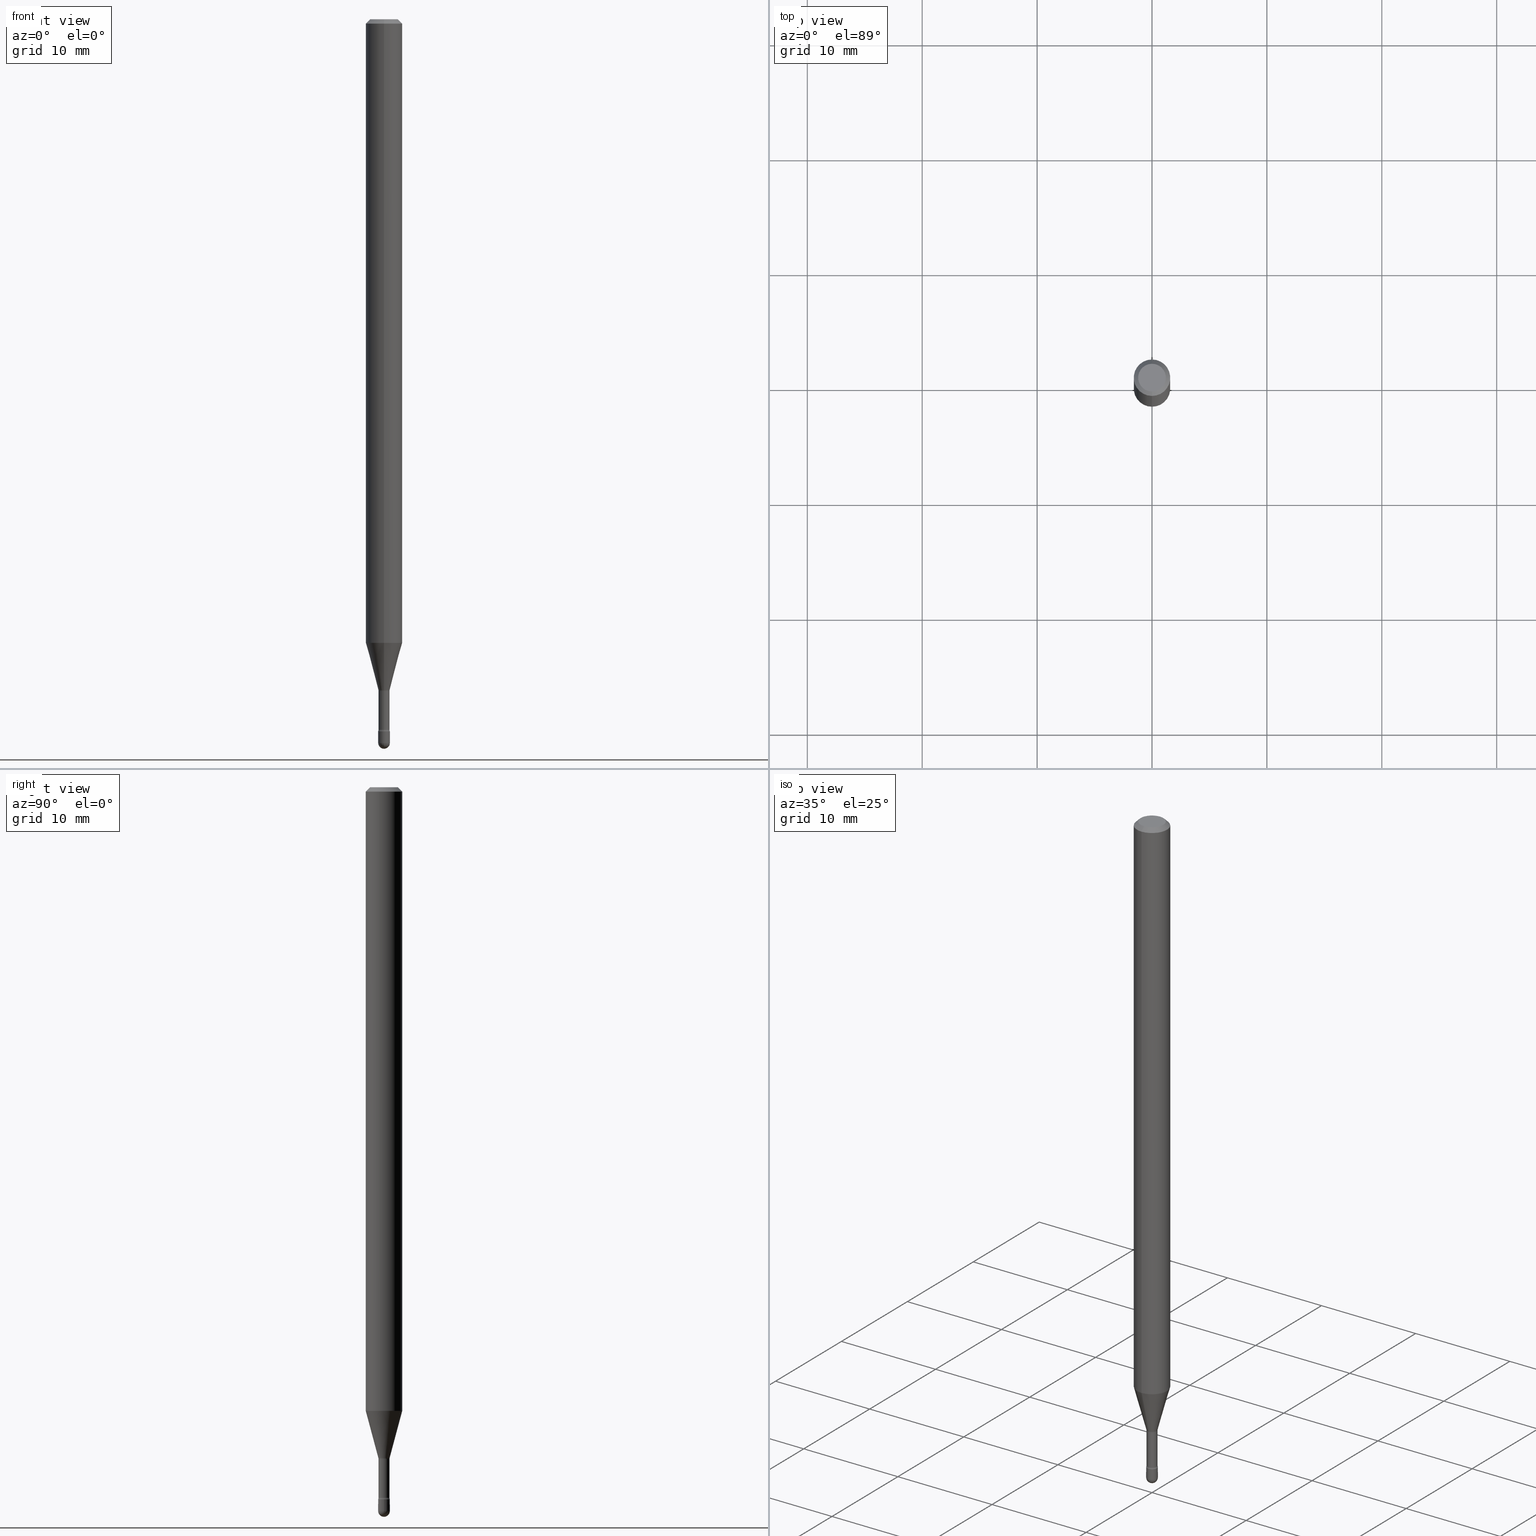
[diagram: canonical four-view strip — front | top / right | iso, engineering-drawing reading convention]
A machine part, canonical four-view strip (front | top / right | iso — engineering-drawing reading convention). The complete STEP part file that produces these views, byte-faithful:
ISO-10303-21;
HEADER;
FILE_DESCRIPTION (( 'STEP AP203' ),
    '1' );
FILE_NAME ('03839.STEP',
    '2024-04-09T20:41:39',
    ( '' ),
    ( '' ),
    'SwSTEP 2.0',
    'SolidWorks 2023',
    '' );
FILE_SCHEMA (( 'CONFIG_CONTROL_DESIGN' ));
ENDSEC;

DATA;
#1 = DIRECTION ( 'NONE',  ( 2.445422373250545997E-29, -3.491547833448277962E-15, -1.000000000000000000 ) ) ;
#2 = DIRECTION ( 'NONE',  ( 7.105427357601001859E-15, 1.000000000000000000, 0.000000000000000000 ) ) ;
#3 = CARTESIAN_POINT ( 'NONE',  ( 5.619806819669917985E-29, -8.023899895679087068E-15, -2.298092501787273090 ) ) ;
#4 = ADVANCED_FACE ( 'NONE', ( #111 ), #324, .F. ) ;
#5 = ADVANCED_FACE ( 'NONE', ( #496 ), #296, .F. ) ;
#6 = LINE ( 'NONE', #329, #403 ) ;
#7 = CIRCLE ( 'NONE', #343, 0.01931111260566397564 ) ;
#8 = DIRECTION ( 'NONE',  ( -2.445422373250545997E-29, 3.491547833448277962E-15, 1.000000000000000000 ) ) ;
#9 = ORIENTED_EDGE ( 'NONE', *, *, #531, .T. ) ;
#10 = CARTESIAN_POINT ( 'NONE',  ( 6.064762639339139522E-29, -8.658873720331001644E-15, -2.480000000000000426 ) ) ;
#11 = DIRECTION ( 'NONE',  ( -6.982962677686265922E-15, -1.000000000000000000, 0.000000000000000000 ) ) ;
#12 = VERTEX_POINT ( 'NONE', #453 ) ;
#13 = DIRECTION ( 'NONE',  ( 1.000000000000000000, -6.982962677686235945E-15, 0.000000000000000000 ) ) ;
#14 = CARTESIAN_POINT ( 'NONE',  ( 5.619806819669917985E-29, -8.023899895679087068E-15, -2.298092501787273090 ) ) ;
#15 = VERTEX_POINT ( 'NONE', #519 ) ;
#16 = CIRCLE ( 'NONE', #195, 0.04749999999999999362 ) ;
#17 = APPLICATION_PROTOCOL_DEFINITION ( 'international standard', 'config_control_design', 1994, #218 ) ;
#18 = AXIS2_PLACEMENT_3D ( 'NONE', #452, #54, #372 ) ;
#19 = CARTESIAN_POINT ( 'NONE',  ( 6.064762639339139522E-29, -8.658873720331001644E-15, -2.480000000000000426 ) ) ;
#20 = ORIENTED_EDGE ( 'NONE', *, *, #22, .T. ) ;
#21 = FACE_OUTER_BOUND ( 'NONE', #419, .T. ) ;
#22 = EDGE_CURVE ( 'NONE', #124, #275, #118, .T. ) ;
#23 = ADVANCED_FACE ( 'NONE', ( #562 ), #473, .F. ) ;
#24 = CYLINDRICAL_SURFACE ( 'NONE', #35, 0.01880000000000000421 ) ;
#25 = ORIENTED_EDGE ( 'NONE', *, *, #247, .F. ) ;
#26 = CIRCLE ( 'NONE', #106, 0.06250000000000000000 ) ;
#27 = COORDINATED_UNIVERSAL_TIME_OFFSET ( 5, 0, .BEHIND. ) ;
#28 = AXIS2_PLACEMENT_3D ( 'NONE', #92, #441, #364 ) ;
#29 = CARTESIAN_POINT ( 'NONE',  ( 4.440892098501151740E-16, 0.06249999999999995143, -0.01500000000000030129 ) ) ;
#30 = LOCAL_TIME ( 16, 41, 39.00000000000000000, #304 ) ;
#31 = ORIENTED_EDGE ( 'NONE', *, *, #360, .F. ) ;
#32 = CARTESIAN_POINT ( 'NONE',  ( 1.378452907375190485E-16, 0.01879999999999150406, -2.434121224617320500 ) ) ;
#33 = EDGE_CURVE ( 'NONE', #94, #248, #26, .T. ) ;
#34 = FACE_OUTER_BOUND ( 'NONE', #318, .T. ) ;
#35 = AXIS2_PLACEMENT_3D ( 'NONE', #207, #130, #305 ) ;
#36 = ORIENTED_EDGE ( 'NONE', *, *, #88, .F. ) ;
#37 = MANIFOLD_SOLID_BREP ( 'Body-Move/Copy2[1]', #536 ) ;
#38 = DIRECTION ( 'NONE',  ( -2.445422373250545997E-29, 3.491547833448277962E-15, 1.000000000000000000 ) ) ;
#39 = VECTOR ( 'NONE', #388, 39.37007874015748143 ) ;
#40 = ORIENTED_EDGE ( 'NONE', *, *, #88, .T. ) ;
#41 = MANIFOLD_SOLID_BREP ( 'Body-Move/Copy2[2]', #543 ) ;
#42 = DIRECTION ( 'NONE',  ( -2.445422373250545997E-29, 3.491547833448277962E-15, 1.000000000000000000 ) ) ;
#43 = ORIENTED_EDGE ( 'NONE', *, *, #108, .T. ) ;
#44 = ORIENTED_EDGE ( 'NONE', *, *, #349, .T. ) ;
#45 = DIRECTION ( 'NONE',  ( 1.000000000000000000, -6.982962677686265922E-15, 4.876176775795935793E-29 ) ) ;
#46 = CC_DESIGN_PERSON_AND_ORGANIZATION_ASSIGNMENT ( #250, #206, ( #274 ) ) ;
#47 = DIRECTION ( 'NONE',  ( 6.982962677686265133E-15, 1.000000000000000000, 0.000000000000000000 ) ) ;
#48 = CARTESIAN_POINT ( 'NONE',  ( 5.952454501883212804E-29, -8.498850688163074584E-15, -2.434121224617320500 ) ) ;
#49 = VECTOR ( 'NONE', #186, 39.37007874015748143 ) ;
#50 = ORIENTED_EDGE ( 'NONE', *, *, #538, .F. ) ;
#51 = ORIENTED_EDGE ( 'NONE', *, *, #210, .F. ) ;
#52 = FACE_OUTER_BOUND ( 'NONE', #341, .T. ) ;
#53 = ORIENTED_EDGE ( 'NONE', *, *, #196, .F. ) ;
#54 = DIRECTION ( 'NONE',  ( -2.445422373250545997E-29, 3.491547833448277962E-15, 1.000000000000000000 ) ) ;
#55 = DESIGN_CONTEXT ( 'detailed design', #218, 'design' ) ;
#56 = AXIS2_PLACEMENT_3D ( 'NONE', #232, #1, #429 ) ;
#57 = SECURITY_CLASSIFICATION ( '', '', #294 ) ;
#58 = DIRECTION ( 'NONE',  ( -6.982962677686265922E-15, -1.000000000000000000, 3.491547833448278751E-15 ) ) ;
#59 = ORIENTED_EDGE ( 'NONE', *, *, #258, .F. ) ;
#60 = CARTESIAN_POINT ( 'NONE',  ( 1.372137078140545619E-16, 0.01931111260565595081, -2.298092501787273090 ) ) ;
#61 = FACE_OUTER_BOUND ( 'NONE', #190, .T. ) ;
#62 = EDGE_CURVE ( 'NONE', #110, #87, #424, .T. ) ;
#63 = EDGE_LOOP ( 'NONE', ( #414, #194, #520, #460 ) ) ;
#64 = COORDINATED_UNIVERSAL_TIME_OFFSET ( 5, 0, .BEHIND. ) ;
#65 = DIRECTION ( 'NONE',  ( -2.445422373250545997E-29, 3.491547833448277962E-15, 1.000000000000000000 ) ) ;
#66 = ORIENTED_EDGE ( 'NONE', *, *, #484, .F. ) ;
#67 = APPROVAL_STATUS ( 'not_yet_approved' ) ;
#68 = CARTESIAN_POINT ( 'NONE',  ( -4.364351673553916201E-16, -0.06250000000000000000, 6.962951384817635098E-16 ) ) ;
#69 = AXIS2_PLACEMENT_3D ( 'NONE', #485, #90, #47 ) ;
#70 = ADVANCED_FACE ( 'NONE', ( #537 ), #440, .T. ) ;
#71 = CALENDAR_DATE ( 2024, 9, 4 ) ;
#72 = DIRECTION ( 'NONE',  ( -2.445468806185136877E-29, 3.491481338843145188E-15, 1.000000000000000000 ) ) ;
#73 = PERSON_AND_ORGANIZATION ( #557, #131 ) ;
#74 = DIRECTION ( 'NONE',  ( -1.000000000000000000, 6.982962677686265133E-15, -4.883557194083112340E-29 ) ) ;
#75 = CALENDAR_DATE ( 2024, 9, 4 ) ;
#76 = ADVANCED_FACE ( 'NONE', ( #61 ), #377, .T. ) ;
#77 = AXIS2_PLACEMENT_3D ( 'NONE', #109, #242, #277 ) ;
#78 = DIRECTION ( 'NONE',  ( 1.000000000000000000, -6.982962677686265922E-15, 4.876176775795935793E-29 ) ) ;
#79 = AXIS2_PLACEMENT_3D ( 'NONE', #535, #231, #402 ) ;
#80 = DIRECTION ( 'NONE',  ( -2.438088387897960049E-29, 3.491481338843145188E-15, 1.000000000000000000 ) ) ;
#81 = EDGE_LOOP ( 'NONE', ( #481, #444, #153, #51 ) ) ;
#82 = CARTESIAN_POINT ( 'NONE',  ( 6.064762639339139522E-29, -8.658873720331001644E-15, -2.480000000000000426 ) ) ;
#83 = ORIENTED_EDGE ( 'NONE', *, *, #386, .T. ) ;
#84 = FACE_OUTER_BOUND ( 'NONE', #314, .T. ) ;
#85 = AXIS2_PLACEMENT_3D ( 'NONE', #340, #74, #300 ) ;
#86 = CC_DESIGN_APPROVAL ( #292, ( #274 ) ) ;
#87 = VERTEX_POINT ( 'NONE', #321 ) ;
#88 = EDGE_CURVE ( 'NONE', #511, #489, #122, .T. ) ;
#89 = LINE ( 'NONE', #396, #284 ) ;
#90 = DIRECTION ( 'NONE',  ( -1.000000000000000000, 6.982962677686265133E-15, -4.883557194083112340E-29 ) ) ;
#91 = ORIENTED_EDGE ( 'NONE', *, *, #137, .F. ) ;
#92 = CARTESIAN_POINT ( 'NONE',  ( -2.360241385057395071E-16, -0.03380000000000803889, -2.301974787463811012 ) ) ;
#93 = CARTESIAN_POINT ( 'NONE',  ( 2.401634446869701444E-16, 0.03379999999999196841, -2.301974787463811012 ) ) ;
#94 = VERTEX_POINT ( 'NONE', #156 ) ;
#95 = CARTESIAN_POINT ( 'NONE',  ( 3.668133559875839332E-31, -5.237321750172445712E-17, -0.01500000000000008271 ) ) ;
#96 = VERTEX_POINT ( 'NONE', #99 ) ;
#97 = CIRCLE ( 'NONE', #176, 0.01880000000000000421 ) ;
#98 = AXIS2_PLACEMENT_3D ( 'NONE', #346, #126, #251 ) ;
#99 = CARTESIAN_POINT ( 'NONE',  ( -1.312796983404455212E-16, -0.01880000000000803945, -2.301974787463811012 ) ) ;
#100 = AXIS2_PLACEMENT_3D ( 'NONE', #235, #413, #184 ) ;
#101 = ADVANCED_BREP_SHAPE_REPRESENTATION ( '03839', ( #37, #41, #225 ), #334 ) ;
#102 = DIRECTION ( 'NONE',  ( -2.445468806185136597E-29, 3.491481338843145583E-15, 1.000000000000000000 ) ) ;
#103 = ADVANCED_FACE ( 'NONE', ( #480 ), #217, .T. ) ;
#104 =( NAMED_UNIT ( * ) PLANE_ANGLE_UNIT ( ) SI_UNIT ( $, .RADIAN. ) );
#105 = ORIENTED_EDGE ( 'NONE', *, *, #180, .F. ) ;
#106 = AXIS2_PLACEMENT_3D ( 'NONE', #288, #447, #113 ) ;
#107 = VECTOR ( 'NONE', #448, 39.37007874015748854 ) ;
#108 = EDGE_CURVE ( 'NONE', #514, #291, #320, .T. ) ;
#109 = CARTESIAN_POINT ( 'NONE',  ( -2.360241385057363517E-16, -0.03380000000000851074, -2.434121224617320500 ) ) ;
#110 = VERTEX_POINT ( 'NONE', #526 ) ;
#111 = FACE_OUTER_BOUND ( 'NONE', #397, .T. ) ;
#112 = DATE_AND_TIME ( #390, #363 ) ;
#113 = DIRECTION ( 'NONE',  ( -6.982962677686265922E-15, -1.000000000000000000, 4.370956789862821150E-15 ) ) ;
#114 = ORIENTED_EDGE ( 'NONE', *, *, #469, .T. ) ;
#115 = PERSON_AND_ORGANIZATION_ROLE ( 'design_supplier' ) ;
#116 = ADVANCED_FACE ( 'NONE', ( #200 ), #202, .T. ) ;
#117 = CARTESIAN_POINT ( 'NONE',  ( -0.02000000000000000042, 1.421085471520200401E-16, -9.837870180509812545E-31 ) ) ;
#118 = CIRCLE ( 'NONE', #212, 0.01500000000000001159 ) ;
#119 = AXIS2_PLACEMENT_3D ( 'NONE', #356, #226, #308 ) ;
#120 = DATE_TIME_ROLE ( 'creation_date' ) ;
#121 = DIRECTION ( 'NONE',  ( -2.445468806185136597E-29, 3.491481338843145583E-15, 1.000000000000000000 ) ) ;
#122 = CIRCLE ( 'NONE', #79, 0.01999999999999989286 ) ;
#123 = PERSON_AND_ORGANIZATION ( #557, #131 ) ;
#124 = VERTEX_POINT ( 'NONE', #32 ) ;
#125 = PERSON_AND_ORGANIZATION ( #557, #131 ) ;
#126 = DIRECTION ( 'NONE',  ( -2.445468806185136597E-29, 3.491481338843145583E-15, 1.000000000000000000 ) ) ;
#127 = AXIS2_PLACEMENT_3D ( 'NONE', #158, #121, #78 ) ;
#128 = ADVANCED_FACE ( 'NONE', ( #425 ), #24, .T. ) ;
#129 = AXIS2_PLACEMENT_3D ( 'NONE', #230, #269, #273 ) ;
#130 = DIRECTION ( 'NONE',  ( -2.445422373250545997E-29, 3.491547833448277962E-15, 1.000000000000000000 ) ) ;
#131 = ORGANIZATION ( 'UNSPECIFIED', 'UNSPECIFIED', '' ) ;
#132 = AXIS2_PLACEMENT_3D ( 'NONE', #361, #246, #499 ) ;
#133 = DIRECTION ( 'NONE',  ( -2.445422373250545997E-29, 3.491547833448277962E-15, 1.000000000000000000 ) ) ;
#134 = ORIENTED_EDGE ( 'NONE', *, *, #281, .F. ) ;
#135 = CARTESIAN_POINT ( 'NONE',  ( -1.348487785898921104E-16, -0.01931111260567200047, -2.298092501787273090 ) ) ;
#136 = VERTEX_POINT ( 'NONE', #29 ) ;
#137 = EDGE_CURVE ( 'NONE', #203, #96, #216, .T. ) ;
#138 = ADVANCED_FACE ( 'NONE', ( #550 ), #431, .T. ) ;
#139 = CARTESIAN_POINT ( 'NONE',  ( 0.02000000000000000042, -1.396592535537253145E-16, 9.752353551591871936E-31 ) ) ;
#140 = AXIS2_PLACEMENT_3D ( 'NONE', #3, #280, #237 ) ;
#141 = CARTESIAN_POINT ( 'NONE',  ( 5.952567525274821981E-29, -8.498688832233398804E-15, -2.434121224617320500 ) ) ;
#142 = ORIENTED_EDGE ( 'NONE', *, *, #442, .F. ) ;
#143 = CARTESIAN_POINT ( 'NONE',  ( 5.952567525274821981E-29, -8.498688832233398804E-15, -2.434121224617320500 ) ) ;
#144 = CARTESIAN_POINT ( 'NONE',  ( 5.629407535367409882E-29, -8.037302012917312840E-15, -2.301974787463811012 ) ) ;
#145 = ORIENTED_EDGE ( 'NONE', *, *, #137, .T. ) ;
#146 = ADVANCED_FACE ( 'NONE', ( #21 ), #540, .T. ) ;
#147 = CARTESIAN_POINT ( 'NONE',  ( 6.064762639339139522E-29, -8.658873720331001644E-15, -2.480000000000000426 ) ) ;
#148 = DIRECTION ( 'NONE',  ( -6.982962677686265922E-15, -1.000000000000000000, 3.491547833448278357E-15 ) ) ;
#149 = ORIENTED_EDGE ( 'NONE', *, *, #546, .T. ) ;
#150 = CIRCLE ( 'NONE', #426, 0.02000000000000000042 ) ;
#151 = DIRECTION ( 'NONE',  ( 1.000000000000000000, -6.982962677686235945E-15, 0.000000000000000000 ) ) ;
#152 = DIRECTION ( 'NONE',  ( -2.445422373250545997E-29, 3.491547833448277962E-15, 1.000000000000000000 ) ) ;
#153 = ORIENTED_EDGE ( 'NONE', *, *, #561, .F. ) ;
#154 = DIRECTION ( 'NONE',  ( -2.445468806185136597E-29, 3.491481338843145583E-15, 1.000000000000000000 ) ) ;
#155 = PRODUCT_DEFINITION_SHAPE ( 'NONE', 'NONE',  #274 ) ;
#156 = CARTESIAN_POINT ( 'NONE',  ( -4.364351673553395553E-16, -0.06250000000000748013, -2.136909379709240220 ) ) ;
#157 = CIRCLE ( 'NONE', #306, 0.01880000000000000421 ) ;
#158 = CARTESIAN_POINT ( 'NONE',  ( 0.000000000000000000, 0.000000000000000000, 0.000000000000000000 ) ) ;
#159 = ORIENTED_EDGE ( 'NONE', *, *, #435, .T. ) ;
#160 = PERSON_AND_ORGANIZATION ( #557, #131 ) ;
#161 = CARTESIAN_POINT ( 'NONE',  ( -1.312796983405018262E-16, -0.01880000000000000421, 5.437144981600737344E-16 ) ) ;
#162 = ORIENTED_EDGE ( 'NONE', *, *, #368, .F. ) ;
#163 = VECTOR ( 'NONE', #547, 39.37007874015748143 ) ;
#164 = COORDINATED_UNIVERSAL_TIME_OFFSET ( 5, 0, .BEHIND. ) ;
#165 = DIRECTION ( 'NONE',  ( -4.851104656540964275E-15, -0.7071067811865500152, -0.7071067811865450192 ) ) ;
#166 = ORIENTED_EDGE ( 'NONE', *, *, #513, .F. ) ;
#167 = VECTOR ( 'NONE', #517, 39.37007874015748143 ) ;
#168 = DATE_AND_TIME ( #71, #30 ) ;
#169 = CARTESIAN_POINT ( 'NONE',  ( -1.312796983404422918E-16, -0.01880000000000850088, -2.434121224617320500 ) ) ;
#170 = APPROVAL_DATE_TIME ( #112, #292 ) ;
#171 = DIRECTION ( 'NONE',  ( -2.445422373250545997E-29, 3.491547833448277962E-15, 1.000000000000000000 ) ) ;
#172 = ORIENTED_EDGE ( 'NONE', *, *, #234, .T. ) ;
#173 = CC_DESIGN_PERSON_AND_ORGANIZATION_ASSIGNMENT ( #125, #501, ( #476 ) ) ;
#174 = DIRECTION ( 'NONE',  ( -2.445422373250546277E-29, 3.491547833448277568E-15, 1.000000000000000000 ) ) ;
#175 = VERTEX_POINT ( 'NONE', #391 ) ;
#176 = AXIS2_PLACEMENT_3D ( 'NONE', #404, #133, #310 ) ;
#177 = CARTESIAN_POINT ( 'NONE',  ( 5.619806819669917985E-29, -8.023899895679087068E-15, -2.298092501787273090 ) ) ;
#178 = ORIENTED_EDGE ( 'NONE', *, *, #435, .F. ) ;
#179 = DIRECTION ( 'NONE',  ( -2.445422373250545997E-29, 3.491547833448277962E-15, 1.000000000000000000 ) ) ;
#180 = EDGE_CURVE ( 'NONE', #175, #110, #338, .T. ) ;
#181 = EDGE_LOOP ( 'NONE', ( #172, #249 ) ) ;
#182 = VECTOR ( 'NONE', #72, 39.37007874015748143 ) ;
#183 = PLANE ( 'NONE',  #418 ) ;
#184 = DIRECTION ( 'NONE',  ( 1.000000000000000000, -6.982962677686284065E-15, 0.000000000000000000 ) ) ;
#185 = ORIENTED_EDGE ( 'NONE', *, *, #405, .F. ) ;
#186 = DIRECTION ( 'NONE',  ( -2.445468806185136877E-29, 3.491481338843145188E-15, 1.000000000000000000 ) ) ;
#187 = AXIS2_PLACEMENT_3D ( 'NONE', #303, #65, #463 ) ;
#188 = DIRECTION ( 'NONE',  ( 1.000000000000000000, -7.105427357601001070E-15, 4.926316322866135778E-29 ) ) ;
#189 = CARTESIAN_POINT ( 'NONE',  ( -1.421085471519589527E-16, -0.02000000000000860464, -2.480000000000000426 ) ) ;
#190 = EDGE_LOOP ( 'NONE', ( #162, #40, #66, #59 ) ) ;
#191 = EDGE_LOOP ( 'NONE', ( #389, #351, #497, #297 ) ) ;
#192 = ADVANCED_FACE ( 'NONE', ( #422 ), #262, .T. ) ;
#193 =( LENGTH_UNIT ( ) NAMED_UNIT ( * ) SI_UNIT ( $, .METRE. ) );
#194 = ORIENTED_EDGE ( 'NONE', *, *, #335, .F. ) ;
#195 = AXIS2_PLACEMENT_3D ( 'NONE', #263, #179, #354 ) ;
#196 = EDGE_CURVE ( 'NONE', #434, #373, #209, .T. ) ;
#197 = CC_DESIGN_PERSON_AND_ORGANIZATION_ASSIGNMENT ( #73, #115, ( #476 ) ) ;
#198 = DIRECTION ( 'NONE',  ( 0.000000000000000000, 0.000000000000000000, 1.000000000000000000 ) ) ;
#199 = ORIENTED_EDGE ( 'NONE', *, *, #222, .F. ) ;
#200 = FACE_OUTER_BOUND ( 'NONE', #493, .T. ) ;
#201 = DIRECTION ( 'NONE',  ( -6.982962677686265922E-15, -1.000000000000000000, 3.483106191921935554E-15 ) ) ;
#202 = CYLINDRICAL_SURFACE ( 'NONE', #127, 0.02000000000000000042 ) ;
#203 = VERTEX_POINT ( 'NONE', #169 ) ;
#204 = ADVANCED_FACE ( 'NONE', ( #459 ), #387, .T. ) ;
#205 = AXIS2_PLACEMENT_3D ( 'NONE', #509, #171, #508 ) ;
#206 = PERSON_AND_ORGANIZATION_ROLE ( 'creator' ) ;
#207 = CARTESIAN_POINT ( 'NONE',  ( -1.169113584055446105E-44, 1.669184350826100908E-30, 4.780733988912460139E-16 ) ) ;
#208 = ORIENTED_EDGE ( 'NONE', *, *, #258, .T. ) ;
#209 = LINE ( 'NONE', #295, #223 ) ;
#210 = EDGE_CURVE ( 'NONE', #94, #373, #428, .T. ) ;
#211 = CARTESIAN_POINT ( 'NONE',  ( 4.440892098500625669E-16, 0.06250000000000000000, 2.598516593007287152E-16 ) ) ;
#212 = AXIS2_PLACEMENT_3D ( 'NONE', #332, #188, #412 ) ;
#213 = AXIS2_PLACEMENT_3D ( 'NONE', #10, #154, #13 ) ;
#214 = APPROVAL_DATE_TIME ( #457, #490 ) ;
#215 = DIRECTION ( 'NONE',  ( -2.445422373250545997E-29, 3.491547833448277962E-15, 1.000000000000000000 ) ) ;
#216 = LINE ( 'NONE', #161, #163 ) ;
#217 = CONICAL_SURFACE ( 'NONE', #311, 0.01931111260566397564, 0.2617993877991498519 ) ;
#218 = APPLICATION_CONTEXT ( 'configuration controlled 3d designs of mechanical parts and assemblies' ) ;
#219 = LINE ( 'NONE', #139, #49 ) ;
#220 = ORIENTED_EDGE ( 'NONE', *, *, #532, .F. ) ;
#221 = ADVANCED_FACE ( 'NONE', ( #461 ), #255, .F. ) ;
#222 = EDGE_CURVE ( 'NONE', #248, #136, #348, .T. ) ;
#223 = VECTOR ( 'NONE', #165, 39.37007874015748143 ) ;
#224 = DIMENSIONAL_EXPONENTS ( 1.000000000000000000, 0.000000000000000000, 0.000000000000000000, 0.000000000000000000, 0.000000000000000000, 0.000000000000000000, 0.000000000000000000 ) ;
#225 = AXIS2_PLACEMENT_3D ( 'NONE', #411, #198, #375 ) ;
#226 = DIRECTION ( 'NONE',  ( -2.445468806185136597E-29, 3.491481338843145583E-15, 1.000000000000000000 ) ) ;
#227 = ORIENTED_EDGE ( 'NONE', *, *, #386, .F. ) ;
#228 = DIRECTION ( 'NONE',  ( -6.982962677686265922E-15, -1.000000000000000000, 0.000000000000000000 ) ) ;
#229 = EDGE_LOOP ( 'NONE', ( #134, #43, #83, #142 ) ) ;
#230 = CARTESIAN_POINT ( 'NONE',  ( 5.225646006749922120E-29, -7.461121314999102077E-15, -2.136909379709240220 ) ) ;
#231 = DIRECTION ( 'NONE',  ( 1.000000000000000000, -6.982962677686265922E-15, 4.883557194083112340E-29 ) ) ;
#232 = CARTESIAN_POINT ( 'NONE',  ( 3.668133559875839332E-31, -5.237321750172445712E-17, -0.01500000000000008271 ) ) ;
#233 = AXIS2_PLACEMENT_3D ( 'NONE', #95, #152, #201 ) ;
#234 = EDGE_CURVE ( 'NONE', #293, #434, #395, .T. ) ;
#235 = CARTESIAN_POINT ( 'NONE',  ( 5.966943887091733341E-29, -8.519214466777275048E-15, -2.440000000000000391 ) ) ;
#236 = DIRECTION ( 'NONE',  ( -6.982962677686265922E-15, -1.000000000000000000, 0.000000000000000000 ) ) ;
#237 = DIRECTION ( 'NONE',  ( -6.982962677686265922E-15, -1.000000000000000000, 0.000000000000000000 ) ) ;
#238 = EDGE_LOOP ( 'NONE', ( #31, #20, #309, #276 ) ) ;
#239 = ADVANCED_FACE ( 'NONE', ( #455 ), #510, .F. ) ;
#240 = CC_DESIGN_DATE_AND_TIME_ASSIGNMENT ( #168, #290, ( #57 ) ) ;
#241 = AXIS2_PLACEMENT_3D ( 'NONE', #141, #317, #367 ) ;
#242 = DIRECTION ( 'NONE',  ( -1.000000000000000000, 6.982962677686265922E-15, -4.883557194083112340E-29 ) ) ;
#243 = ORIENTED_EDGE ( 'NONE', *, *, #339, .F. ) ;
#244 = CIRCLE ( 'NONE', #486, 0.02000000000000000042 ) ;
#245 = APPROVAL_PERSON_ORGANIZATION ( #464, #490, #347 ) ;
#246 = DIRECTION ( 'NONE',  ( -2.445422373250545997E-29, 3.491547833448277962E-15, 1.000000000000000000 ) ) ;
#247 = EDGE_CURVE ( 'NONE', #87, #110, #445, .T. ) ;
#248 = VERTEX_POINT ( 'NONE', #417 ) ;
#249 = ORIENTED_EDGE ( 'NONE', *, *, #286, .T. ) ;
#250 = PERSON_AND_ORGANIZATION ( #557, #131 ) ;
#251 = DIRECTION ( 'NONE',  ( 1.000000000000000000, -6.982962677686284065E-15, 0.000000000000000000 ) ) ;
#252 = AXIS2_PLACEMENT_3D ( 'NONE', #468, #8, #58 ) ;
#253 = CC_DESIGN_APPROVAL ( #490, ( #57 ) ) ;
#254 = APPROVAL_STATUS ( 'not_yet_approved' ) ;
#255 = PLANE ( 'NONE',  #565 ) ;
#256 = APPROVAL_ROLE ( '' ) ;
#257 = DIRECTION ( 'NONE',  ( 2.445422373250545997E-29, -3.491547833448277568E-15, -1.000000000000000000 ) ) ;
#258 = EDGE_CURVE ( 'NONE', #438, #15, #503, .T. ) ;
#259 = CARTESIAN_POINT ( 'NONE',  ( -1.169113584055446105E-44, 1.669184350826100908E-30, 4.780733988912460139E-16 ) ) ;
#260 = CIRCLE ( 'NONE', #233, 0.06250000000000000000 ) ;
#261 = APPROVAL_STATUS ( 'not_yet_approved' ) ;
#262 = SPHERICAL_SURFACE ( 'NONE', #85, 0.01999999999999989286 ) ;
#263 = CARTESIAN_POINT ( 'NONE',  ( 2.023215213457105092E-45, -2.889359818235751182E-31, -8.274387357780164316E-17 ) ) ;
#264 = ORIENTED_EDGE ( 'NONE', *, *, #532, .T. ) ;
#265 = DIRECTION ( 'NONE',  ( -2.445422373250545997E-29, 3.491547833448277962E-15, 1.000000000000000000 ) ) ;
#266 = AXIS2_PLACEMENT_3D ( 'NONE', #384, #392, #502 ) ;
#267 = ORIENTED_EDGE ( 'NONE', *, *, #546, .F. ) ;
#268 = VECTOR ( 'NONE', #174, 39.37007874015748143 ) ;
#269 = DIRECTION ( 'NONE',  ( -2.445422373250545997E-29, 3.491547833448277962E-15, 1.000000000000000000 ) ) ;
#270 = PRODUCT ( '03839', '03839', '', ( #544 ) ) ;
#271 = CARTESIAN_POINT ( 'NONE',  ( -4.364351673553912750E-16, -0.06250000000000005551, -0.01499999999999986587 ) ) ;
#272 = DIRECTION ( 'NONE',  ( -2.445422373250545997E-29, 3.491547833448277568E-15, 1.000000000000000000 ) ) ;
#273 = DIRECTION ( 'NONE',  ( -6.982962677686265922E-15, -1.000000000000000000, 4.370956789862821150E-15 ) ) ;
#274 = PRODUCT_DEFINITION ( 'UNKNOWN', '', #476, #55 ) ;
#275 = VERTEX_POINT ( 'NONE', #398 ) ;
#276 = ORIENTED_EDGE ( 'NONE', *, *, #498, .F. ) ;
#277 = DIRECTION ( 'NONE',  ( -6.982962677686266711E-15, -1.000000000000000000, 0.000000000000000000 ) ) ;
#278 = TOROIDAL_SURFACE ( 'NONE', #315, 0.03380000000000001059, 0.01500000000000001159 ) ;
#279 = DIRECTION ( 'NONE',  ( -2.445422373250545997E-29, 3.491547833448277962E-15, 1.000000000000000000 ) ) ;
#280 = DIRECTION ( 'NONE',  ( -2.445422373250545997E-29, 3.491547833448277962E-15, 1.000000000000000000 ) ) ;
#281 = EDGE_CURVE ( 'NONE', #514, #483, #433, .T. ) ;
#282 =( NAMED_UNIT ( * ) SI_UNIT ( $, .STERADIAN. ) SOLID_ANGLE_UNIT ( ) );
#283 = AXIS2_PLACEMENT_3D ( 'NONE', #478, #272, #380 ) ;
#284 = VECTOR ( 'NONE', #479, 39.37007874015748143 ) ;
#285 = CC_DESIGN_APPROVAL ( #436, ( #476 ) ) ;
#286 = EDGE_CURVE ( 'NONE', #434, #293, #16, .T. ) ;
#287 = LINE ( 'NONE', #60, #107 ) ;
#288 = CARTESIAN_POINT ( 'NONE',  ( 5.225646006749922120E-29, -7.461121314999102077E-15, -2.136909379709240220 ) ) ;
#289 = ORIENTED_EDGE ( 'NONE', *, *, #368, .T. ) ;
#290 = DATE_TIME_ROLE ( 'classification_date' ) ;
#291 = VERTEX_POINT ( 'NONE', #477 ) ;
#292 = APPROVAL ( #67, 'UNSPECIFIED' ) ;
#293 = VERTEX_POINT ( 'NONE', #319 ) ;
#294 = SECURITY_CLASSIFICATION_LEVEL ( 'unclassified' ) ;
#295 = CARTESIAN_POINT ( 'NONE',  ( -4.287811248607203282E-16, -0.06250000000000005551, -0.01499999999999986587 ) ) ;
#296 = TOROIDAL_SURFACE ( 'NONE', #370, 0.03380000000000000365, 0.01500000000000003067 ) ;
#297 = ORIENTED_EDGE ( 'NONE', *, *, #342, .F. ) ;
#298 = CONICAL_SURFACE ( 'NONE', #140, 0.01931111260566397564, 0.2617993877991498519 ) ;
#299 = LOCAL_TIME ( 16, 41, 39.00000000000000000, #27 ) ;
#300 = DIRECTION ( 'NONE',  ( 6.982962677686265133E-15, 1.000000000000000000, 0.000000000000000000 ) ) ;
#301 = ORIENTED_EDGE ( 'NONE', *, *, #62, .T. ) ;
#302 = CALENDAR_DATE ( 2024, 9, 4 ) ;
#303 = CARTESIAN_POINT ( 'NONE',  ( 5.629407535367409882E-29, -8.037302012917312840E-15, -2.301974787463811012 ) ) ;
#304 = COORDINATED_UNIVERSAL_TIME_OFFSET ( 5, 0, .BEHIND. ) ;
#305 = DIRECTION ( 'NONE',  ( -6.982962677686265922E-15, -1.000000000000000000, 3.491547833448277568E-15 ) ) ;
#306 = AXIS2_PLACEMENT_3D ( 'NONE', #534, #379, #492 ) ;
#307 = ADVANCED_FACE ( 'NONE', ( #34 ), #278, .F. ) ;
#308 = DIRECTION ( 'NONE',  ( 1.000000000000000000, -6.982962677686235945E-15, 0.000000000000000000 ) ) ;
#309 = ORIENTED_EDGE ( 'NONE', *, *, #405, .T. ) ;
#310 = DIRECTION ( 'NONE',  ( -6.982962677686265922E-15, -1.000000000000000000, 0.000000000000000000 ) ) ;
#311 = AXIS2_PLACEMENT_3D ( 'NONE', #14, #279, #11 ) ;
#312 = ORIENTED_EDGE ( 'NONE', *, *, #22, .F. ) ;
#313 = DIRECTION ( 'NONE',  ( 1.000000000000000000, -6.982962677686235945E-15, 0.000000000000000000 ) ) ;
#314 = EDGE_LOOP ( 'NONE', ( #355, #301 ) ) ;
#315 = AXIS2_PLACEMENT_3D ( 'NONE', #143, #359, #560 ) ;
#316 = FACE_OUTER_BOUND ( 'NONE', #471, .T. ) ;
#317 = DIRECTION ( 'NONE',  ( -2.445422373250545997E-29, 3.491547833448277962E-15, 1.000000000000000000 ) ) ;
#318 = EDGE_LOOP ( 'NONE', ( #312, #267, #376, #114 ) ) ;
#319 = CARTESIAN_POINT ( 'NONE',  ( 3.840629472727447874E-16, 0.04749999999999999362, -2.485923956665948360E-16 ) ) ;
#320 = CIRCLE ( 'NONE', #491, 0.01500000000000002720 ) ;
#321 = CARTESIAN_POINT ( 'NONE',  ( 0.02000000000000000042, -8.658873720331001644E-15, -2.440000000000000391 ) ) ;
#322 = EDGE_LOOP ( 'NONE', ( #199, #451, #333, #220 ) ) ;
#323 = CARTESIAN_POINT ( 'NONE',  ( 1.396592535537856130E-16, 0.01999999999999128517, -2.480000000000000426 ) ) ;
#324 = PLANE ( 'NONE',  #283 ) ;
#325 = CIRCLE ( 'NONE', #28, 0.01500000000000002720 ) ;
#326 = APPLICATION_PROTOCOL_DEFINITION ( 'international standard', 'config_control_design', 1994, #358 ) ;
#327 = APPROVAL_PERSON_ORGANIZATION ( #160, #436, #256 ) ;
#328 = ORIENTED_EDGE ( 'NONE', *, *, #330, .F. ) ;
#329 = CARTESIAN_POINT ( 'NONE',  ( 1.335820343228988402E-16, 0.01880000000000000421, 4.124322996224184413E-16 ) ) ;
#330 = EDGE_CURVE ( 'NONE', #248, #94, #495, .T. ) ;
#331 = DIRECTION ( 'NONE',  ( -2.445422373250546277E-29, 3.491547833448277568E-15, 1.000000000000000000 ) ) ;
#332 = CARTESIAN_POINT ( 'NONE',  ( 2.401634446869734478E-16, 0.03379999999999151739, -2.434121224617320500 ) ) ;
#333 = ORIENTED_EDGE ( 'NONE', *, *, #210, .T. ) ;
#334 =( GEOMETRIC_REPRESENTATION_CONTEXT ( 3 ) GLOBAL_UNCERTAINTY_ASSIGNED_CONTEXT ( ( #401 ) ) GLOBAL_UNIT_ASSIGNED_CONTEXT ( ( #529, #104, #282 ) ) REPRESENTATION_CONTEXT ( 'NONE', 'WORKASPACE' ) );
#335 = EDGE_CURVE ( 'NONE', #483, #514, #7, .T. ) ;
#336 = DIRECTION ( 'NONE',  ( 1.000000000000000000, -7.105427357601001070E-15, 4.926316322866135778E-29 ) ) ;
#337 = DATE_AND_TIME ( #75, #299 ) ;
#338 = LINE ( 'NONE', #117, #182 ) ;
#339 = EDGE_CURVE ( 'NONE', #175, #438, #409, .T. ) ;
#340 = CARTESIAN_POINT ( 'NONE',  ( 6.064762639339139522E-29, -8.658873720331001644E-15, -2.480000000000000426 ) ) ;
#341 = EDGE_LOOP ( 'NONE', ( #552, #559, #443, #525 ) ) ;
#342 = EDGE_CURVE ( 'NONE', #293, #136, #89, .T. ) ;
#343 = AXIS2_PLACEMENT_3D ( 'NONE', #177, #38, #366 ) ;
#344 = APPROVAL_PERSON_ORGANIZATION ( #454, #292, #345 ) ;
#345 = APPROVAL_ROLE ( '' ) ;
#346 = CARTESIAN_POINT ( 'NONE',  ( 5.966943887091733341E-29, -8.519214466777275048E-15, -2.440000000000000391 ) ) ;
#347 = APPROVAL_ROLE ( '' ) ;
#348 = LINE ( 'NONE', #211, #39 ) ;
#349 = EDGE_CURVE ( 'NONE', #483, #94, #522, .T. ) ;
#350 = CARTESIAN_POINT ( 'NONE',  ( 3.316907271900976096E-16, 0.04749999999999999362, 3.181624056792907265E-17 ) ) ;
#351 = ORIENTED_EDGE ( 'NONE', *, *, #196, .T. ) ;
#352 = AXIS2_PLACEMENT_3D ( 'NONE', #48, #265, #472 ) ;
#353 = AXIS2_PLACEMENT_3D ( 'NONE', #488, #410, #236 ) ;
#354 = DIRECTION ( 'NONE',  ( -6.982962677686266711E-15, -1.000000000000000000, 3.491547833448278357E-15 ) ) ;
#355 = ORIENTED_EDGE ( 'NONE', *, *, #247, .T. ) ;
#356 = CARTESIAN_POINT ( 'NONE',  ( 6.064762639339139522E-29, -8.658873720331001644E-15, -2.480000000000000426 ) ) ;
#357 = ORIENTED_EDGE ( 'NONE', *, *, #339, .T. ) ;
#358 = APPLICATION_CONTEXT ( 'configuration controlled 3d designs of mechanical parts and assemblies' ) ;
#359 = DIRECTION ( 'NONE',  ( -2.445422373250545997E-29, 3.491547833448277962E-15, 1.000000000000000000 ) ) ;
#360 = EDGE_CURVE ( 'NONE', #124, #203, #416, .T. ) ;
#361 = CARTESIAN_POINT ( 'NONE',  ( -1.169113584055446105E-44, 1.669184350826100908E-30, 4.780733988912460139E-16 ) ) ;
#362 = CIRCLE ( 'NONE', #77, 0.01500000000000001159 ) ;
#363 = LOCAL_TIME ( 16, 41, 39.00000000000000000, #64 ) ;
#364 = DIRECTION ( 'NONE',  ( -6.982962677686265133E-15, -1.000000000000000000, 0.000000000000000000 ) ) ;
#365 = DIRECTION ( 'NONE',  ( -2.445422373250545997E-29, 3.491547833448277962E-15, 1.000000000000000000 ) ) ;
#366 = DIRECTION ( 'NONE',  ( -6.982962677686265922E-15, -1.000000000000000000, 0.000000000000000000 ) ) ;
#367 = DIRECTION ( 'NONE',  ( -6.982962677686265922E-15, -1.000000000000000000, 3.491547833448278357E-15 ) ) ;
#368 = EDGE_CURVE ( 'NONE', #511, #438, #528, .T. ) ;
#369 = DIRECTION ( 'NONE',  ( -2.445422373250545997E-29, 3.491547833448277962E-15, 1.000000000000000000 ) ) ;
#370 = AXIS2_PLACEMENT_3D ( 'NONE', #144, #365, #148 ) ;
#371 = AXIS2_PLACEMENT_3D ( 'NONE', #558, #432, #524 ) ;
#372 = DIRECTION ( 'NONE',  ( -6.982962677686265922E-15, -1.000000000000000000, 3.483106191921935554E-15 ) ) ;
#373 = VERTEX_POINT ( 'NONE', #271 ) ;
#374 = CARTESIAN_POINT ( 'NONE',  ( -1.348487785898921104E-16, -0.01931111260567200047, -2.298092501787273090 ) ) ;
#375 = DIRECTION ( 'NONE',  ( 1.000000000000000000, 0.000000000000000000, 0.000000000000000000 ) ) ;
#376 = ORIENTED_EDGE ( 'NONE', *, *, #498, .T. ) ;
#377 = SPHERICAL_SURFACE ( 'NONE', #69, 0.01999999999999989286 ) ;
#378 = ADVANCED_FACE ( 'NONE', ( #84 ), #183, .T. ) ;
#379 = DIRECTION ( 'NONE',  ( -2.445422373250545997E-29, 3.491547833448277962E-15, 1.000000000000000000 ) ) ;
#380 = DIRECTION ( 'NONE',  ( -6.982962677686265922E-15, -1.000000000000000000, 3.491547833448277568E-15 ) ) ;
#381 = CIRCLE ( 'NONE', #353, 0.01880000000000000421 ) ;
#382 = ORIENTED_EDGE ( 'NONE', *, *, #553, .F. ) ;
#383 = CALENDAR_DATE ( 2024, 9, 4 ) ;
#384 = CARTESIAN_POINT ( 'NONE',  ( 3.668133559875839332E-31, -5.237321750172445712E-17, -0.01500000000000008271 ) ) ;
#385 = ORIENTED_EDGE ( 'NONE', *, *, #234, .F. ) ;
#386 = EDGE_CURVE ( 'NONE', #291, #96, #97, .T. ) ;
#387 = CYLINDRICAL_SURFACE ( 'NONE', #518, 0.06250000000000000000 ) ;
#388 = DIRECTION ( 'NONE',  ( -2.445422373250546277E-29, 3.491547833448277568E-15, 1.000000000000000000 ) ) ;
#389 = ORIENTED_EDGE ( 'NONE', *, *, #286, .F. ) ;
#390 = CALENDAR_DATE ( 2024, 9, 4 ) ;
#391 = CARTESIAN_POINT ( 'NONE',  ( -0.02000000000000000042, -8.446935546402118183E-15, -2.480000000000000426 ) ) ;
#392 = DIRECTION ( 'NONE',  ( 2.445422373250545997E-29, -3.491547833448277962E-15, -1.000000000000000000 ) ) ;
#393 = CC_DESIGN_PERSON_AND_ORGANIZATION_ASSIGNMENT ( #505, #541, ( #270 ) ) ;
#394 = FACE_OUTER_BOUND ( 'NONE', #81, .T. ) ;
#395 = CIRCLE ( 'NONE', #205, 0.04749999999999999362 ) ;
#396 = CARTESIAN_POINT ( 'NONE',  ( 4.364351673553919652E-16, 0.06249999999999995143, -0.01500000000000030129 ) ) ;
#397 = EDGE_LOOP ( 'NONE', ( #516, #185 ) ) ;
#398 = CARTESIAN_POINT ( 'NONE',  ( 1.421085471520797224E-16, 0.01999999999999148986, -2.440000000000000391 ) ) ;
#399 = PRODUCT_RELATED_PRODUCT_CATEGORY ( 'detail', '', ( #270 ) ) ;
#400 = CARTESIAN_POINT ( 'NONE',  ( 5.966943887091733341E-29, -8.519214466777275048E-15, -2.440000000000000391 ) ) ;
#401 = UNCERTAINTY_MEASURE_WITH_UNIT (LENGTH_MEASURE( 1.000000000000000082E-05 ), #529, 'distance_accuracy_value', 'NONE');
#402 = DIRECTION ( 'NONE',  ( 6.982962677686265922E-15, 1.000000000000000000, 0.000000000000000000 ) ) ;
#403 = VECTOR ( 'NONE', #331, 39.37007874015748143 ) ;
#404 = CARTESIAN_POINT ( 'NONE',  ( 5.629300647922672965E-29, -8.037455081821828852E-15, -2.301974787463811012 ) ) ;
#405 = EDGE_CURVE ( 'NONE', #275, #12, #244, .T. ) ;
#406 = CARTESIAN_POINT ( 'NONE',  ( 5.966830590731332278E-29, -8.519376713613798433E-15, -2.440000000000000391 ) ) ;
#407 = ORIENTED_EDGE ( 'NONE', *, *, #538, .T. ) ;
#408 = ORIENTED_EDGE ( 'NONE', *, *, #62, .F. ) ;
#409 = CIRCLE ( 'NONE', #119, 0.02000000000000000042 ) ;
#410 = DIRECTION ( 'NONE',  ( -2.445422373250545997E-29, 3.491547833448277962E-15, 1.000000000000000000 ) ) ;
#411 = CARTESIAN_POINT ( 'NONE',  ( 0.000000000000000000, 0.000000000000000000, 0.000000000000000000 ) ) ;
#412 = DIRECTION ( 'NONE',  ( 7.105427357600999492E-15, 1.000000000000000000, 0.000000000000000000 ) ) ;
#413 = DIRECTION ( 'NONE',  ( -2.445468806185136597E-29, 3.491481338843145583E-15, 1.000000000000000000 ) ) ;
#414 = ORIENTED_EDGE ( 'NONE', *, *, #108, .F. ) ;
#415 = COORDINATED_UNIVERSAL_TIME_OFFSET ( 5, 0, .BEHIND. ) ;
#416 = CIRCLE ( 'NONE', #352, 0.01880000000000000421 ) ;
#417 = CARTESIAN_POINT ( 'NONE',  ( 4.440892098501145824E-16, 0.06249999999999251987, -2.136909379709240664 ) ) ;
#418 = AXIS2_PLACEMENT_3D ( 'NONE', #400, #80, #45 ) ;
#419 = EDGE_LOOP ( 'NONE', ( #9, #456, #25, #178, #548 ) ) ;
#420 = CC_DESIGN_SECURITY_CLASSIFICATION ( #57, ( #476 ) ) ;
#421 = SHAPE_DEFINITION_REPRESENTATION ( #155, #101 ) ;
#422 = FACE_OUTER_BOUND ( 'NONE', #475, .T. ) ;
#423 = DIRECTION ( 'NONE',  ( 6.982962677686265922E-15, 1.000000000000000000, -3.491547833448277568E-15 ) ) ;
#424 = CIRCLE ( 'NONE', #100, 0.02000000000000000042 ) ;
#425 = FACE_OUTER_BOUND ( 'NONE', #530, .T. ) ;
#426 = AXIS2_PLACEMENT_3D ( 'NONE', #147, #102, #151 ) ;
#427 = LOCAL_TIME ( 16, 41, 39.00000000000000000, #164 ) ;
#428 = LINE ( 'NONE', #68, #268 ) ;
#429 = DIRECTION ( 'NONE',  ( 6.982962677686265922E-15, 1.000000000000000000, -3.483106191921935554E-15 ) ) ;
#430 = ORIENTED_EDGE ( 'NONE', *, *, #531, .F. ) ;
#431 = CONICAL_SURFACE ( 'NONE', #266, 0.06250000000000000000, 0.7853981633974483900 ) ;
#432 = DIRECTION ( 'NONE',  ( -2.445422373250545997E-29, 3.491547833448277962E-15, 1.000000000000000000 ) ) ;
#433 = CIRCLE ( 'NONE', #371, 0.01931111260566397564 ) ;
#434 = VERTEX_POINT ( 'NONE', #563 ) ;
#435 = EDGE_CURVE ( 'NONE', #15, #87, #219, .T. ) ;
#436 = APPROVAL ( #254, 'UNSPECIFIED' ) ;
#437 = CARTESIAN_POINT ( 'NONE',  ( 5.966830590731332278E-29, -8.519376713613798433E-15, -2.440000000000000391 ) ) ;
#438 = VERTEX_POINT ( 'NONE', #189 ) ;
#439 = AXIS2_PLACEMENT_3D ( 'NONE', #551, #542, #506 ) ;
#440 = CYLINDRICAL_SURFACE ( 'NONE', #132, 0.01880000000000000421 ) ;
#441 = DIRECTION ( 'NONE',  ( -1.000000000000000000, 6.982962677686265922E-15, -4.883557194083112340E-29 ) ) ;
#442 = EDGE_CURVE ( 'NONE', #483, #96, #325, .T. ) ;
#443 = ORIENTED_EDGE ( 'NONE', *, *, #33, .F. ) ;
#444 = ORIENTED_EDGE ( 'NONE', *, *, #222, .T. ) ;
#445 = CIRCLE ( 'NONE', #98, 0.02000000000000000042 ) ;
#446 = CARTESIAN_POINT ( 'NONE',  ( 6.114527181752021441E-29, -8.727478700308718159E-15, -2.500000000000000000 ) ) ;
#447 = DIRECTION ( 'NONE',  ( -2.445422373250545997E-29, 3.491547833448277962E-15, 1.000000000000000000 ) ) ;
#448 = DIRECTION ( 'NONE',  ( 1.839019923739597160E-15, 0.2588190451025245142, 0.9659258262890670910 ) ) ;
#449 = ADVANCED_FACE ( 'NONE', ( #316 ), #545, .T. ) ;
#450 = CIRCLE ( 'NONE', #213, 0.02000000000000000042 ) ;
#451 = ORIENTED_EDGE ( 'NONE', *, *, #330, .T. ) ;
#452 = CARTESIAN_POINT ( 'NONE',  ( 3.668133559875839332E-31, -5.237321750172445712E-17, -0.01500000000000008271 ) ) ;
#453 = CARTESIAN_POINT ( 'NONE',  ( -1.396592535536656815E-16, -0.02000000000000852832, -2.440000000000000391 ) ) ;
#454 = PERSON_AND_ORGANIZATION ( #557, #131 ) ;
#455 = FACE_OUTER_BOUND ( 'NONE', #229, .T. ) ;
#456 = ORIENTED_EDGE ( 'NONE', *, *, #180, .T. ) ;
#457 = DATE_AND_TIME ( #302, #427 ) ;
#458 = AXIS2_PLACEMENT_3D ( 'NONE', #19, #515, #313 ) ;
#459 = FACE_OUTER_BOUND ( 'NONE', #322, .T. ) ;
#460 = ORIENTED_EDGE ( 'NONE', *, *, #553, .T. ) ;
#461 = FACE_OUTER_BOUND ( 'NONE', #181, .T. ) ;
#462 = ADVANCED_FACE ( 'NONE', ( #394 ), #554, .T. ) ;
#463 = DIRECTION ( 'NONE',  ( -6.982962677686265922E-15, -1.000000000000000000, 3.491547833448278357E-15 ) ) ;
#464 = PERSON_AND_ORGANIZATION ( #557, #131 ) ;
#465 = CIRCLE ( 'NONE', #555, 0.02000000000000000042 ) ;
#466 = DIRECTION ( 'NONE',  ( -1.000000000000000000, 7.105427357601001070E-15, -4.926315508542082329E-29 ) ) ;
#467 = EDGE_LOOP ( 'NONE', ( #166, #566, #44, #328 ) ) ;
#468 = CARTESIAN_POINT ( 'NONE',  ( -1.169113584055446105E-44, 1.669184350826100908E-30, 4.780733988912460139E-16 ) ) ;
#469 = EDGE_CURVE ( 'NONE', #12, #275, #465, .T. ) ;
#470 = ADVANCED_FACE ( 'NONE', ( #52 ), #298, .T. ) ;
#471 = EDGE_LOOP ( 'NONE', ( #53, #385, #556, #264 ) ) ;
#472 = DIRECTION ( 'NONE',  ( -6.982962677686265922E-15, -1.000000000000000000, 0.000000000000000000 ) ) ;
#473 = TOROIDAL_SURFACE ( 'NONE', #241, 0.03380000000000001059, 0.01500000000000001159 ) ;
#474 = AXIS2_PLACEMENT_3D ( 'NONE', #82, #466, #512 ) ;
#475 = EDGE_LOOP ( 'NONE', ( #36, #289, #243, #430 ) ) ;
#476 = PRODUCT_DEFINITION_FORMATION_WITH_SPECIFIED_SOURCE ( 'ANY', '', #270, .NOT_KNOWN. ) ;
#477 = CARTESIAN_POINT ( 'NONE',  ( 1.335820343229583992E-16, 0.01879999999999196550, -2.301974787463811012 ) ) ;
#478 = CARTESIAN_POINT ( 'NONE',  ( 1.396592535537849721E-16, 0.01999999999999147945, -2.440000000000000391 ) ) ;
#479 = DIRECTION ( 'NONE',  ( 4.937700262164548042E-15, 0.7071067811865451302, -0.7071067811865499042 ) ) ;
#480 = FACE_OUTER_BOUND ( 'NONE', #467, .T. ) ;
#481 = ORIENTED_EDGE ( 'NONE', *, *, #33, .T. ) ;
#482 = CARTESIAN_POINT ( 'NONE',  ( 2.906514588320848063E-16, 0.01931111260565595081, -2.298092501787273090 ) ) ;
#483 = VERTEX_POINT ( 'NONE', #374 ) ;
#484 = EDGE_CURVE ( 'NONE', #15, #489, #450, .T. ) ;
#485 = CARTESIAN_POINT ( 'NONE',  ( 6.064762639339139522E-29, -8.658873720331001644E-15, -2.480000000000000426 ) ) ;
#486 = AXIS2_PLACEMENT_3D ( 'NONE', #437, #42, #228 ) ;
#487 = CIRCLE ( 'NONE', #18, 0.06250000000000000000 ) ;
#488 = CARTESIAN_POINT ( 'NONE',  ( 5.629300647922672965E-29, -8.037455081821828852E-15, -2.301974787463811012 ) ) ;
#489 = VERTEX_POINT ( 'NONE', #323 ) ;
#490 = APPROVAL ( #261, 'UNSPECIFIED' ) ;
#491 = AXIS2_PLACEMENT_3D ( 'NONE', #93, #336, #2 ) ;
#492 = DIRECTION ( 'NONE',  ( -6.982962677686265922E-15, -1.000000000000000000, 0.000000000000000000 ) ) ;
#493 = EDGE_LOOP ( 'NONE', ( #105, #357, #208, #159, #408 ) ) ;
#494 = EDGE_LOOP ( 'NONE', ( #50, #500, #145, #227 ) ) ;
#495 = CIRCLE ( 'NONE', #129, 0.06250000000000000000 ) ;
#496 = FACE_OUTER_BOUND ( 'NONE', #63, .T. ) ;
#497 = ORIENTED_EDGE ( 'NONE', *, *, #561, .T. ) ;
#498 = EDGE_CURVE ( 'NONE', #203, #12, #362, .T. ) ;
#499 = DIRECTION ( 'NONE',  ( -6.982962677686265922E-15, -1.000000000000000000, 3.491547833448277568E-15 ) ) ;
#500 = ORIENTED_EDGE ( 'NONE', *, *, #360, .T. ) ;
#501 = PERSON_AND_ORGANIZATION_ROLE ( 'creator' ) ;
#502 = DIRECTION ( 'NONE',  ( 6.982962677686265922E-15, 1.000000000000000000, -3.483106191921935554E-15 ) ) ;
#503 = CIRCLE ( 'NONE', #458, 0.02000000000000000042 ) ;
#504 = DIRECTION ( 'NONE',  ( -6.982962677686265922E-15, -1.000000000000000000, 3.491547833448278751E-15 ) ) ;
#505 = PERSON_AND_ORGANIZATION ( #557, #131 ) ;
#506 = DIRECTION ( 'NONE',  ( 1.000000000000000000, -6.982962677686265922E-15, 4.876176775795935793E-29 ) ) ;
#507 = PERSON_AND_ORGANIZATION_ROLE ( 'classification_officer' ) ;
#508 = DIRECTION ( 'NONE',  ( -6.982962677686266711E-15, -1.000000000000000000, 3.491547833448278357E-15 ) ) ;
#509 = CARTESIAN_POINT ( 'NONE',  ( 2.023215213457105092E-45, -2.889359818235751182E-31, -8.274387357780164316E-17 ) ) ;
#510 = TOROIDAL_SURFACE ( 'NONE', #187, 0.03380000000000000365, 0.01500000000000003067 ) ;
#511 = VERTEX_POINT ( 'NONE', #446 ) ;
#512 = DIRECTION ( 'NONE',  ( -7.105427357601000281E-15, -1.000000000000000000, 0.000000000000000000 ) ) ;
#513 = EDGE_CURVE ( 'NONE', #514, #248, #287, .T. ) ;
#514 = VERTEX_POINT ( 'NONE', #482 ) ;
#515 = DIRECTION ( 'NONE',  ( -2.445468806185136597E-29, 3.491481338843145583E-15, 1.000000000000000000 ) ) ;
#516 = ORIENTED_EDGE ( 'NONE', *, *, #469, .F. ) ;
#517 = DIRECTION ( 'NONE',  ( -1.807323732225327378E-15, -0.2588190451025177974, 0.9659258262890690894 ) ) ;
#518 = AXIS2_PLACEMENT_3D ( 'NONE', #259, #215, #504 ) ;
#519 = CARTESIAN_POINT ( 'NONE',  ( 0.02000000000000000042, -8.728703347107863365E-15, -2.480000000000000426 ) ) ;
#520 = ORIENTED_EDGE ( 'NONE', *, *, #442, .T. ) ;
#521 = LOCAL_TIME ( 16, 41, 39.00000000000000000, #415 ) ;
#522 = LINE ( 'NONE', #135, #167 ) ;
#523 = CC_DESIGN_PERSON_AND_ORGANIZATION_ASSIGNMENT ( #123, #507, ( #57 ) ) ;
#524 = DIRECTION ( 'NONE',  ( -6.982962677686265922E-15, -1.000000000000000000, 0.000000000000000000 ) ) ;
#525 = ORIENTED_EDGE ( 'NONE', *, *, #349, .F. ) ;
#526 = CARTESIAN_POINT ( 'NONE',  ( -0.02000000000000000042, -8.446935546402118183E-15, -2.440000000000000391 ) ) ;
#527 = LENGTH_MEASURE_WITH_UNIT ( LENGTH_MEASURE( 0.02539999999999999897 ), #193 );
#528 = CIRCLE ( 'NONE', #474, 0.01999999999999989286 ) ;
#529 =( CONVERSION_BASED_UNIT ( 'INCH', #527 ) LENGTH_UNIT ( ) NAMED_UNIT ( #224 ) );
#530 = EDGE_LOOP ( 'NONE', ( #149, #407, #382, #91 ) ) ;
#531 = EDGE_CURVE ( 'NONE', #489, #175, #150, .T. ) ;
#532 = EDGE_CURVE ( 'NONE', #136, #373, #260, .T. ) ;
#533 = DIRECTION ( 'NONE',  ( -6.982962677686265922E-15, -1.000000000000000000, 0.000000000000000000 ) ) ;
#534 = CARTESIAN_POINT ( 'NONE',  ( 5.952454501883212804E-29, -8.498850688163074584E-15, -2.434121224617320500 ) ) ;
#535 = CARTESIAN_POINT ( 'NONE',  ( 6.064762639339139522E-29, -8.658873720331001644E-15, -2.480000000000000426 ) ) ;
#536 = CLOSED_SHELL ( 'NONE', ( #146, #192, #378, #76, #116 ) ) ;
#537 = FACE_OUTER_BOUND ( 'NONE', #494, .T. ) ;
#538 = EDGE_CURVE ( 'NONE', #124, #291, #6, .T. ) ;
#539 = DATE_AND_TIME ( #383, #521 ) ;
#540 = CYLINDRICAL_SURFACE ( 'NONE', #439, 0.02000000000000000042 ) ;
#541 = PERSON_AND_ORGANIZATION_ROLE ( 'design_owner' ) ;
#542 = DIRECTION ( 'NONE',  ( -2.445468806185136597E-29, 3.491481338843145583E-15, 1.000000000000000000 ) ) ;
#543 = CLOSED_SHELL ( 'NONE', ( #239, #128, #23, #138, #462, #470, #103, #204, #449, #221, #4, #307, #70, #5 ) ) ;
#544 = MECHANICAL_CONTEXT ( 'NONE', #358, 'mechanical' ) ;
#545 = CONICAL_SURFACE ( 'NONE', #56, 0.06250000000000000000, 0.7853981633974483900 ) ;
#546 = EDGE_CURVE ( 'NONE', #203, #124, #157, .T. ) ;
#547 = DIRECTION ( 'NONE',  ( -2.445422373250546277E-29, 3.491547833448277568E-15, 1.000000000000000000 ) ) ;
#548 = ORIENTED_EDGE ( 'NONE', *, *, #484, .T. ) ;
#549 = APPROVAL_DATE_TIME ( #337, #436 ) ;
#550 = FACE_OUTER_BOUND ( 'NONE', #191, .T. ) ;
#551 = CARTESIAN_POINT ( 'NONE',  ( 0.000000000000000000, 0.000000000000000000, 0.000000000000000000 ) ) ;
#552 = ORIENTED_EDGE ( 'NONE', *, *, #335, .T. ) ;
#553 = EDGE_CURVE ( 'NONE', #96, #291, #381, .T. ) ;
#554 = CYLINDRICAL_SURFACE ( 'NONE', #252, 0.06250000000000000000 ) ;
#555 = AXIS2_PLACEMENT_3D ( 'NONE', #406, #369, #533 ) ;
#556 = ORIENTED_EDGE ( 'NONE', *, *, #342, .T. ) ;
#557 = PERSON ( 'UNSPECIFIED', 'UNSPECIFIED', 'UNSPECIFIED', ('UNSPECIFIED'), ('UNSPECIFIED'), ('UNSPECIFIED') ) ;
#558 = CARTESIAN_POINT ( 'NONE',  ( 5.619806819669917985E-29, -8.023899895679087068E-15, -2.298092501787273090 ) ) ;
#559 = ORIENTED_EDGE ( 'NONE', *, *, #513, .T. ) ;
#560 = DIRECTION ( 'NONE',  ( -6.982962677686265922E-15, -1.000000000000000000, 3.491547833448278357E-15 ) ) ;
#561 = EDGE_CURVE ( 'NONE', #373, #136, #487, .T. ) ;
#562 = FACE_OUTER_BOUND ( 'NONE', #238, .T. ) ;
#563 = CARTESIAN_POINT ( 'NONE',  ( -3.773273898774340269E-16, -0.04749999999999999362, 8.310464851099156202E-17 ) ) ;
#564 = CC_DESIGN_DATE_AND_TIME_ASSIGNMENT ( #539, #120, ( #274 ) ) ;
#565 = AXIS2_PLACEMENT_3D ( 'NONE', #350, #257, #423 ) ;
#566 = ORIENTED_EDGE ( 'NONE', *, *, #281, .T. ) ;
ENDSEC;
END-ISO-10303-21;
